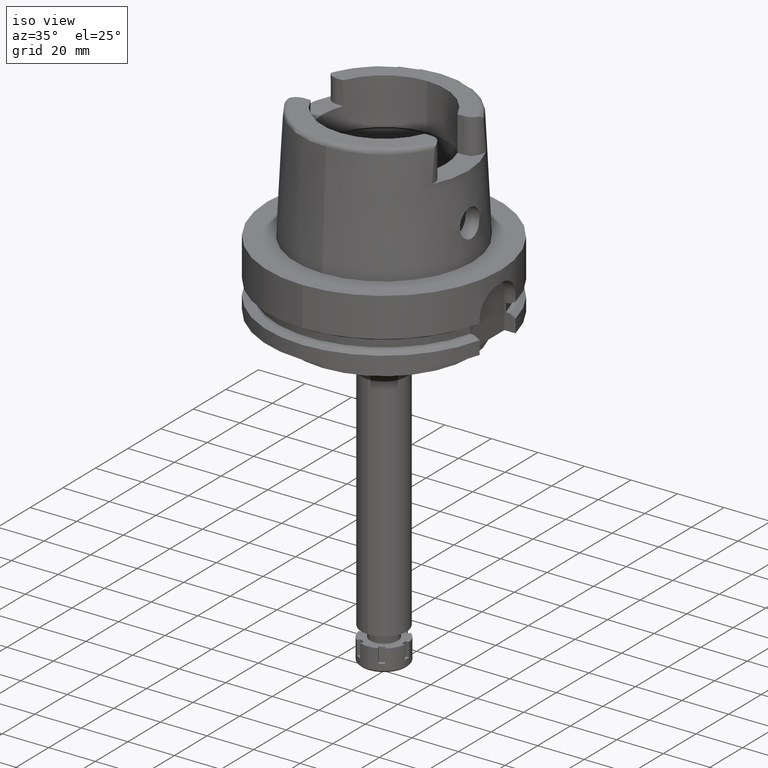
[diagram: clean part render]
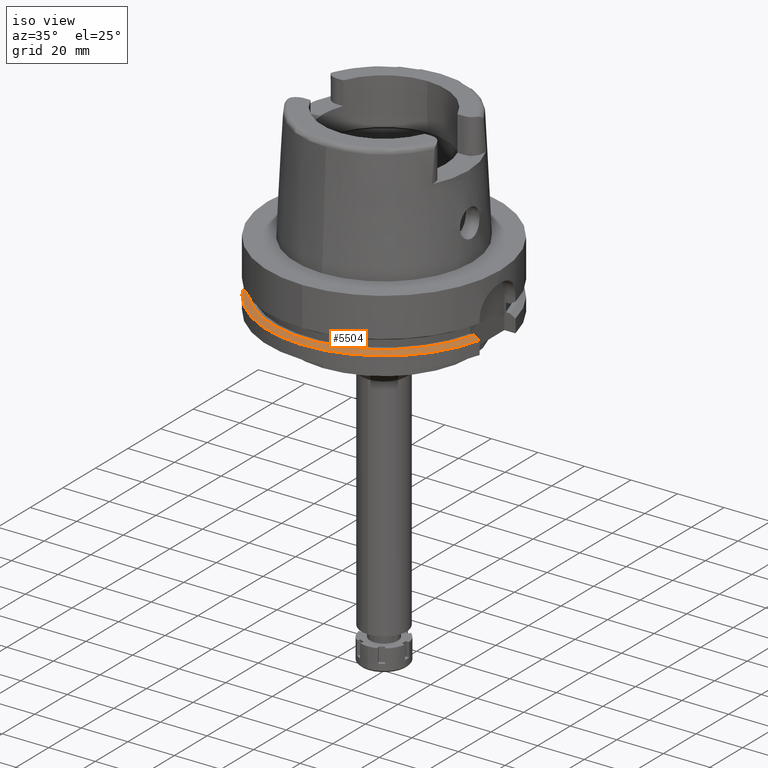
[diagram: same view with one face highlighted and labeled with its STEP entity id]
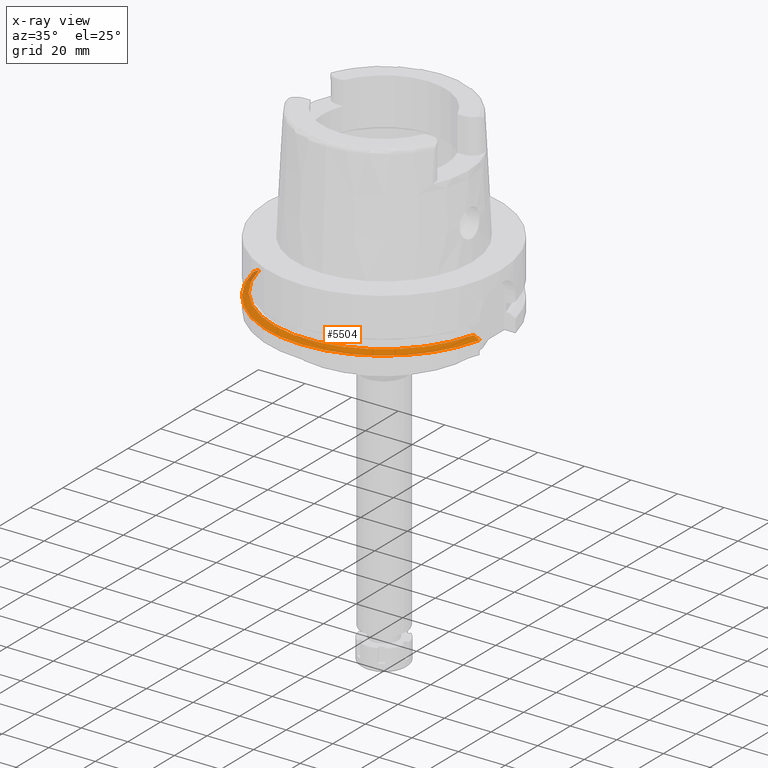
[diagram: x-ray of the same camera — body ghosted, the highlighted face saturated]
A machine part, iso view. The second image highlights one B-rep face of the part: STEP entity #5504.
The next image is the same camera in x-ray: the body ghosted, the highlighted face saturated — about 3% of this face is hidden behind the body in this view.
In plain terms, the highlighted conical surface has half-angle 60 deg.
Its self-contained STEP definition (entity closure, byte-faithful):
#75 = VERTEX_POINT ( 'NONE', #1256 ) ;
#400 = AXIS2_PLACEMENT_3D ( 'NONE', #3295, #2490, #6170 ) ;
#502 = CARTESIAN_POINT ( 'NONE',  ( 48.77499359303000404, -11.00000000000000000, -23.24759526419000011 ) ) ;
#539 = EDGE_CURVE ( 'NONE', #5749, #2201, #2423, .T. ) ;
#675 = DIRECTION ( 'NONE',  ( 0.0000000000000000000, -1.000000000000000000, 0.0000000000000000000 ) ) ;
#703 = B_SPLINE_CURVE_WITH_KNOTS ( 'NONE', 3,
 ( #5382, #3539, #4414, #3092, #5953, #3910 ),
 .UNSPECIFIED., .F., .F.,
 ( 4, 1, 1, 4 ),
 ( 0.0000000000000000000, 0.3333333333333000081, 0.6666666666667000474, 1.000000000000000000 ),
 .UNSPECIFIED. ) ;
#1014 = CARTESIAN_POINT ( 'NONE',  ( -46.56083740329999898, -10.00000000000000000, -21.87500000000000000 ) ) ;
#1134 = AXIS2_PLACEMENT_3D ( 'NONE', #3984, #3051, #675 ) ;
#1211 = CARTESIAN_POINT ( 'NONE',  ( 0.0000000000000000000, 0.0000000000000000000, -23.24759526419000011 ) ) ;
#1256 = CARTESIAN_POINT ( 'NONE',  ( -48.98979485565999425, -10.00000000000000000, -23.24759526419000011 ) ) ;
#1404 = CONICAL_SURFACE ( 'NONE', #400, 48.81129763208999606, 1.047197551196400456 ) ;
#2084 = DIRECTION ( 'NONE',  ( 0.0000000000000000000, 0.0000000000000000000, -1.000000000000000000 ) ) ;
#2201 = VERTEX_POINT ( 'NONE', #1014 ) ;
#2207 = AXIS2_PLACEMENT_3D ( 'NONE', #1211, #2084, #3482 ) ;
#2389 = CARTESIAN_POINT ( 'NONE',  ( 47.14851446811000102, -11.00000000000000000, -22.33225649733000040 ) ) ;
#2423 = CIRCLE ( 'NONE', #1134, 47.62259526418999656 ) ;
#2490 = DIRECTION ( 'NONE',  ( 0.0000000000000000000, 0.0000000000000000000, -1.000000000000000000 ) ) ;
#2951 = CARTESIAN_POINT ( 'NONE',  ( 47.96191616323000062, -11.00000000000000000, -22.78979543230000004 ) ) ;
#3051 = DIRECTION ( 'NONE',  ( 0.0000000000000000000, 0.0000000000000000000, -1.000000000000000000 ) ) ;
#3092 = CARTESIAN_POINT ( 'NONE',  ( -47.37076227628000424, -10.00000000000000000, -22.33230648793000128 ) ) ;
#3226 = CARTESIAN_POINT ( 'NONE',  ( 46.33477721644000269, -11.00000000000000000, -21.87500000000000000 ) ) ;
#3232 = B_SPLINE_CURVE_WITH_KNOTS ( 'NONE', 3,
 ( #3407, #3849, #2389, #2951, #5673, #3349 ),
 .UNSPECIFIED., .F., .F.,
 ( 4, 1, 1, 4 ),
 ( 0.0000000000000000000, 0.3333333333333000081, 0.6666666666667000474, 1.000000000000000000 ),
 .UNSPECIFIED. ) ;
#3295 = CARTESIAN_POINT ( 'NONE',  ( 0.0000000000000000000, 0.0000000000000000000, -22.56129763209999695 ) ) ;
#3349 = CARTESIAN_POINT ( 'NONE',  ( 48.77499359303000404, -11.00000000000000000, -23.24759526419000011 ) ) ;
#3407 = CARTESIAN_POINT ( 'NONE',  ( 46.33477721644000269, -11.00000000000000000, -21.87500000000000000 ) ) ;
#3482 = DIRECTION ( 'NONE',  ( 0.9754998718605770724, -0.2199999999999950051, 0.0000000000000000000 ) ) ;
#3539 = CARTESIAN_POINT ( 'NONE',  ( -48.72002593965999750, -10.00000000000000000, -23.09499092030999989 ) ) ;
#3689 = ORIENTED_EDGE ( 'NONE', *, *, #6034, .F. ) ;
#3849 = CARTESIAN_POINT ( 'NONE',  ( 46.60605711264999940, -11.00000000000000000, -22.02738808210999721 ) ) ;
#3910 = CARTESIAN_POINT ( 'NONE',  ( -46.56083740329999898, -10.00000000000000000, -21.87500000000000000 ) ) ;
#3984 = CARTESIAN_POINT ( 'NONE',  ( 0.0000000000000000000, 0.0000000000000000000, -21.87500000000000000 ) ) ;
#4007 = ORIENTED_EDGE ( 'NONE', *, *, #6046, .F. ) ;
#4204 = ORIENTED_EDGE ( 'NONE', *, *, #539, .T. ) ;
#4400 = CIRCLE ( 'NONE', #2207, 50.00000000000000711 ) ;
#4414 = CARTESIAN_POINT ( 'NONE',  ( -48.18041161677000161, -10.00000000000000000, -22.78984413388999997 ) ) ;
#4769 = FACE_OUTER_BOUND ( 'NONE', #4885, .T. ) ;
#4885 = EDGE_LOOP ( 'NONE', ( #4007, #5516, #3689, #4204 ) ) ;
#5382 = CARTESIAN_POINT ( 'NONE',  ( -48.98979485565999425, -10.00000000000000000, -23.24759526419000011 ) ) ;
#5504 = ADVANCED_FACE ( 'NONE', ( #4769 ), #1404, .T. ) ;
#5516 = ORIENTED_EDGE ( 'NONE', *, *, #5689, .F. ) ;
#5673 = CARTESIAN_POINT ( 'NONE',  ( 48.50399904748000068, -11.00000000000000000, -23.09496975037999889 ) ) ;
#5689 = EDGE_CURVE ( 'NONE', #5914, #75, #4400, .T. ) ;
#5749 = VERTEX_POINT ( 'NONE', #3226 ) ;
#5914 = VERTEX_POINT ( 'NONE', #502 ) ;
#5953 = CARTESIAN_POINT ( 'NONE',  ( -46.83084020607000042, -10.00000000000000000, -22.02741066863000086 ) ) ;
#6034 = EDGE_CURVE ( 'NONE', #5749, #5914, #3232, .T. ) ;
#6046 = EDGE_CURVE ( 'NONE', #75, #2201, #703, .T. ) ;
#6170 = DIRECTION ( 'NONE',  ( 0.0000000000000000000, -1.000000000000000000, 0.0000000000000000000 ) ) ;